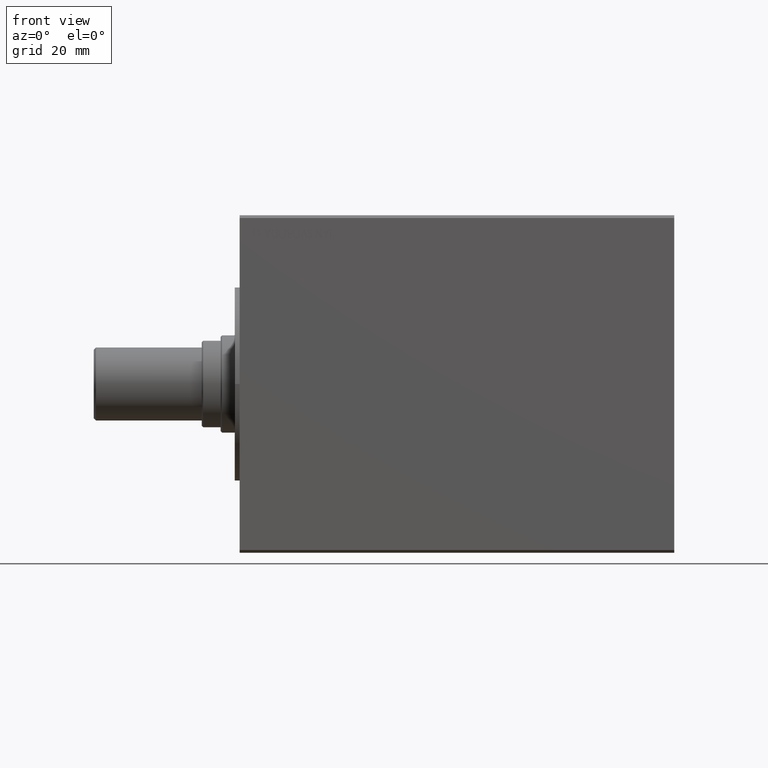
[diagram: clean part render]
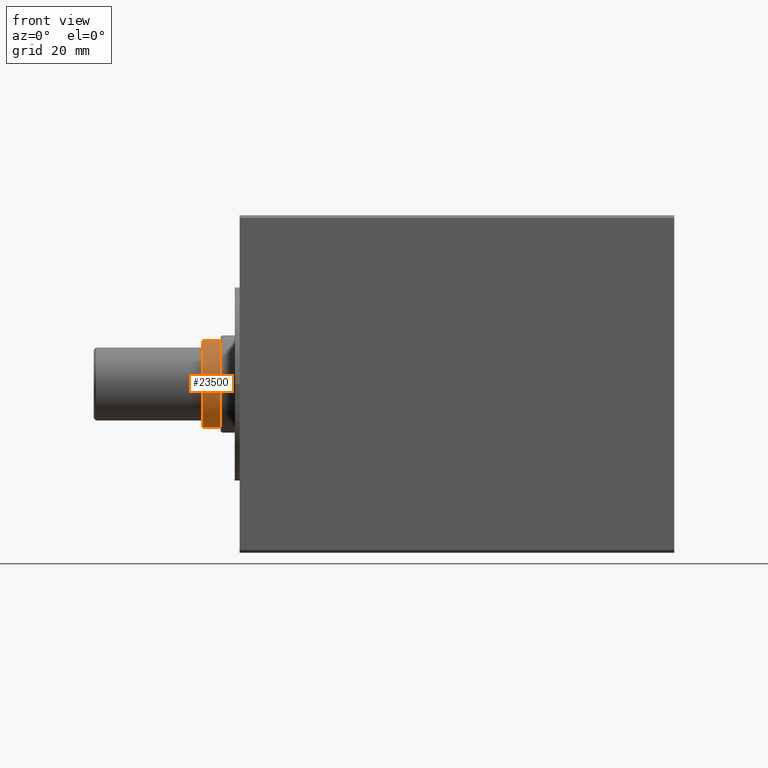
[diagram: same view with one face highlighted and labeled with its STEP entity id]
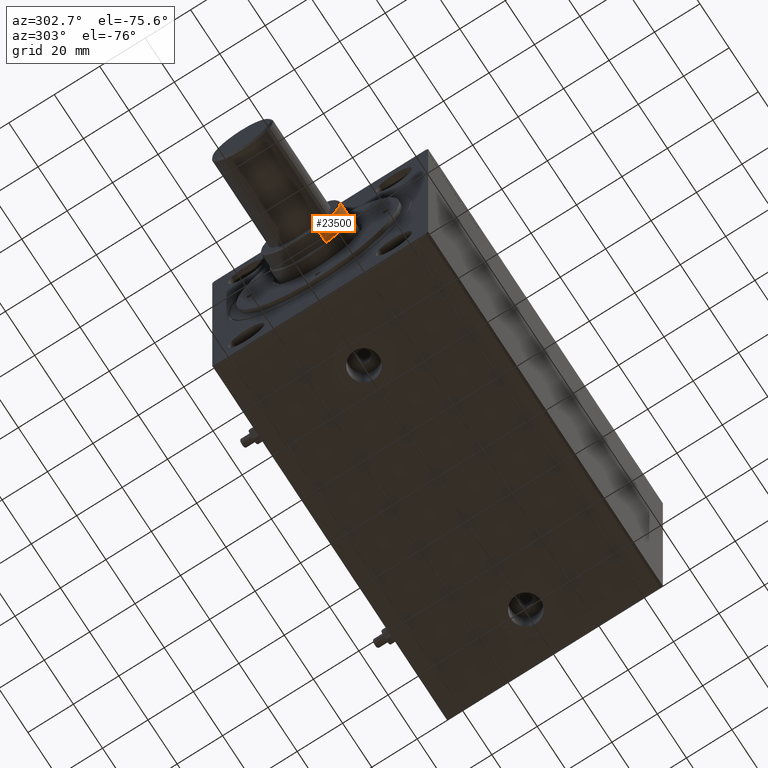
[diagram: same view with one face highlighted and labeled with its STEP entity id]
A machine part, front view. The second image highlights one B-rep face of the part: STEP entity #23500.
A second angle (auxiliary view) of the same face is appended — the face is thin or edge-on in the first view.
In plain terms, the highlighted cylindrical surface (partial cylindrical patch) has radius 17.5 mm, axis along (1, -0, -0).
Its self-contained STEP definition (entity closure, byte-faithful):
#557 = VERTEX_POINT ( 'NONE', #31124 ) ;
#1479 = DIRECTION ( 'NONE',  ( -0.000000000000000000, -0.000000000000000000, -1.000000000000000000 ) ) ;
#1596 = EDGE_CURVE ( 'NONE', #16707, #8448, #11952, .T. ) ;
#4334 = ORIENTED_EDGE ( 'NONE', *, *, #42660, .F. ) ;
#4919 = CARTESIAN_POINT ( 'NONE',  ( 15.99999999999999289, -7.088723439378888713, 147.1999999999999886 ) ) ;
#5333 = DIRECTION ( 'NONE',  ( 0.000000000000000000, 0.000000000000000000, 1.000000000000000000 ) ) ;
#5615 = AXIS2_PLACEMENT_3D ( 'NONE', #19328, #5333, #15418 ) ;
#7687 = LINE ( 'NONE', #18223, #27041 ) ;
#8448 = VERTEX_POINT ( 'NONE', #31564 ) ;
#10518 = EDGE_CURVE ( 'NONE', #557, #11541, #37846, .T. ) ;
#11541 = VERTEX_POINT ( 'NONE', #4919 ) ;
#11669 = AXIS2_PLACEMENT_3D ( 'NONE', #22340, #1479, #11806 ) ;
#11806 = DIRECTION ( 'NONE',  ( -1.000000000000000000, 0.000000000000000000, 0.000000000000000000 ) ) ;
#11931 = ORIENTED_EDGE ( 'NONE', *, *, #1596, .T. ) ;
#11952 = CIRCLE ( 'NONE', #44864, 17.49999999999998934 ) ;
#15418 = DIRECTION ( 'NONE',  ( 1.000000000000000000, 0.000000000000000000, 0.000000000000000000 ) ) ;
#16707 = VERTEX_POINT ( 'NONE', #27995 ) ;
#18223 = CARTESIAN_POINT ( 'NONE',  ( -16.00000000000000000, -7.088723439378881608, 154.2000000000000171 ) ) ;
#18902 = FACE_OUTER_BOUND ( 'NONE', #29587, .T. ) ;
#19187 = ORIENTED_EDGE ( 'NONE', *, *, #35744, .T. ) ;
#19328 = CARTESIAN_POINT ( 'NONE',  ( 0.000000000000000000, 0.000000000000000000, 147.1999999999999886 ) ) ;
#21967 = VECTOR ( 'NONE', #28148, 1000.000000000000000 ) ;
#22340 = CARTESIAN_POINT ( 'NONE',  ( 0.000000000000000000, 0.000000000000000000, 154.2000000000000171 ) ) ;
#22582 = DIRECTION ( 'NONE',  ( 0.000000000000000000, 0.000000000000000000, -1.000000000000000000 ) ) ;
#23500 = ADVANCED_FACE ( 'NONE', ( #18902 ), #43425, .T. ) ;
#24940 = LINE ( 'NONE', #35270, #21967 ) ;
#26482 = DIRECTION ( 'NONE',  ( 1.000000000000000000, 0.000000000000000000, 0.000000000000000000 ) ) ;
#27041 = VECTOR ( 'NONE', #34991, 1000.000000000000000 ) ;
#27995 = CARTESIAN_POINT ( 'NONE',  ( 16.00000000000000000, -7.088723439378881608, 153.6999999999999886 ) ) ;
#28148 = DIRECTION ( 'NONE',  ( -0.000000000000000000, -0.000000000000000000, -1.000000000000000000 ) ) ;
#29587 = EDGE_LOOP ( 'NONE', ( #4334, #11931, #19187, #33260 ) ) ;
#31124 = CARTESIAN_POINT ( 'NONE',  ( -15.99999999999999289, -7.088723439378888713, 147.1999999999999886 ) ) ;
#31564 = CARTESIAN_POINT ( 'NONE',  ( -16.00000000000000000, -7.088723439378881608, 153.6999999999999886 ) ) ;
#33260 = ORIENTED_EDGE ( 'NONE', *, *, #10518, .T. ) ;
#34991 = DIRECTION ( 'NONE',  ( -0.000000000000000000, -0.000000000000000000, -1.000000000000000000 ) ) ;
#35270 = CARTESIAN_POINT ( 'NONE',  ( 16.00000000000000000, -7.088723439378881608, 154.2000000000000171 ) ) ;
#35654 = CARTESIAN_POINT ( 'NONE',  ( 0.000000000000000000, 0.000000000000000000, 153.6999999999999886 ) ) ;
#35744 = EDGE_CURVE ( 'NONE', #8448, #557, #7687, .T. ) ;
#37846 = CIRCLE ( 'NONE', #5615, 17.49999999999998934 ) ;
#42660 = EDGE_CURVE ( 'NONE', #16707, #11541, #24940, .T. ) ;
#43425 = CYLINDRICAL_SURFACE ( 'NONE', #11669, 17.49999999999998934 ) ;
#44864 = AXIS2_PLACEMENT_3D ( 'NONE', #35654, #22582, #26482 ) ;